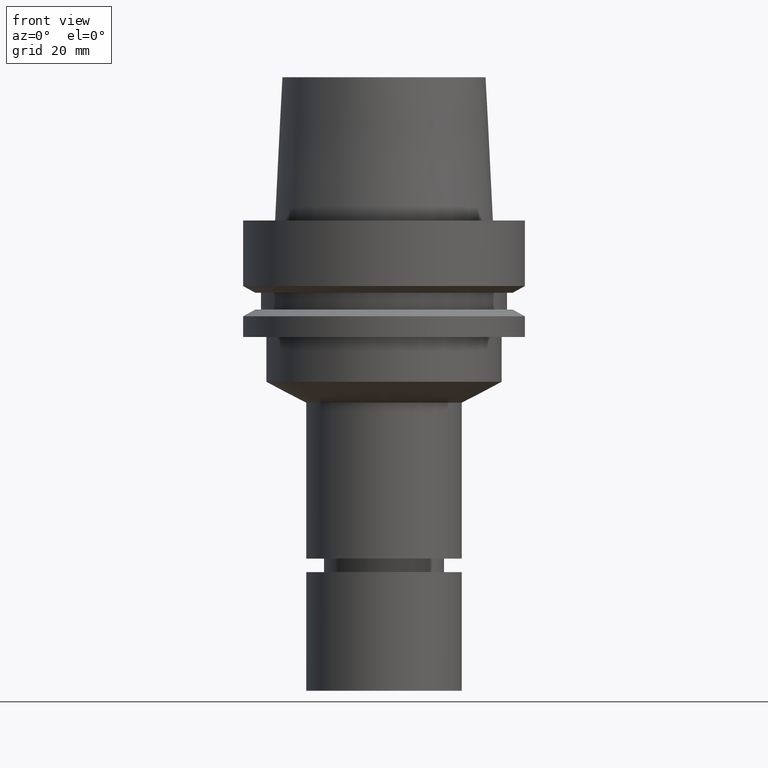
[diagram: clean part render]
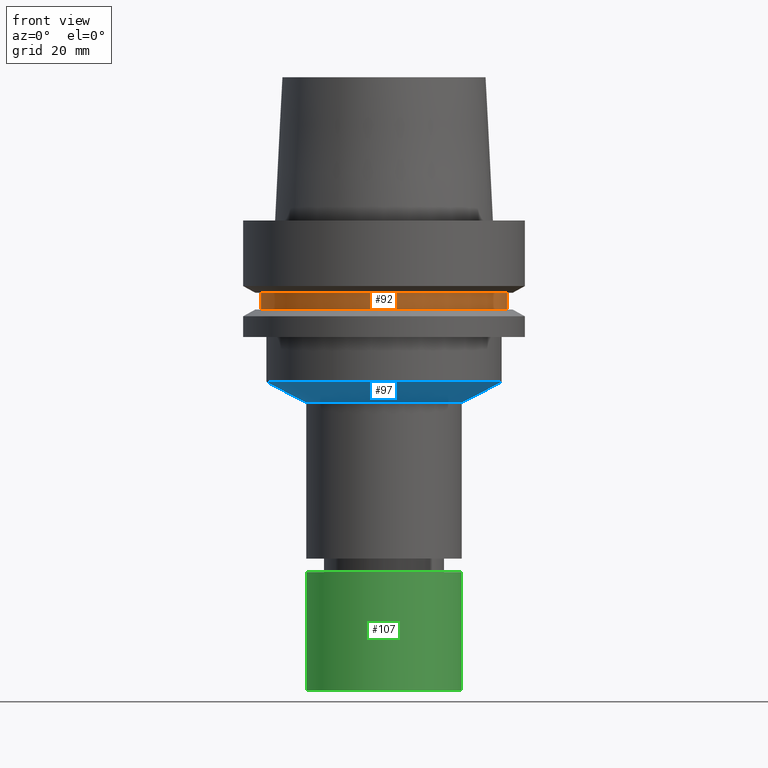
[diagram: same view with three faces highlighted in distinct colors, each labeled with its STEP entity id]
A machine part, front view with three faces highlighted in distinct colors.
Their STEP definitions:

[orange] entity #92 — the highlighted cylindrical surface (bore or boss wall) has radius 27.5 mm, axis along (-0, -0, 1).
#92=ADVANCED_FACE('Unnamed[1]',(#234,#235),#236,.T.);
#104=EDGE_CURVE('Unnamed[1]',#253,#253,#254,.T.);
#194=EDGE_CURVE('Unnamed[1]',#392,#392,#393,.T.);
#234=FACE_BOUND('',#429,.T.);
#235=FACE_BOUND('',#430,.T.);
#236=CYLINDRICAL_SURFACE('',#431,27.4999999999994);
#253=VERTEX_POINT('',#453);
#254=CIRCLE('',#454,27.5);
#392=VERTEX_POINT('',#627);
#393=CIRCLE('',#628,27.4999999999989);
#429=EDGE_LOOP('',(#650));
#430=EDGE_LOOP('',(#651));
#431=AXIS2_PLACEMENT_3D('',#652,#653,#654);
#453=CARTESIAN_POINT('',(9.87371481812537E-016,27.5,-16.1249999999997));
#454=AXIS2_PLACEMENT_3D('',#672,#673,#674);
#627=CARTESIAN_POINT('',(1.21699275665276E-015,27.4999999999989,-19.8750000000013));
#628=AXIS2_PLACEMENT_3D('',#826,#827,#828);
#650=ORIENTED_EDGE('',*,*,#104,.F.);
#651=ORIENTED_EDGE('',*,*,#194,.T.);
#652=CARTESIAN_POINT('',(1.10218211923265E-015,2.2043642384653E-015,-18.0000000000005));
#653=DIRECTION('',(-6.12323399573677E-017,-1.22464679914735E-016,1.0));
#654=DIRECTION('',(-1.23259516440783E-032,1.0,1.22464679914735E-016));
#672=CARTESIAN_POINT('',(9.87371481812538E-016,1.97474296362508E-015,-16.1249999999997));
#673=DIRECTION('',(-6.12323399573677E-017,-1.22464679914735E-016,1.0));
#674=DIRECTION('',(-1.23259516440783E-032,1.0,1.22464679914735E-016));
#826=CARTESIAN_POINT('',(1.21699275665276E-015,2.43398551330552E-015,-19.8750000000013));
#827=DIRECTION('',(-6.12323399573677E-017,-1.22464679914735E-016,1.0));
#828=DIRECTION('',(-1.23259516440783E-032,1.0,1.22464679914735E-016));

[blue] entity #97 — the highlighted conical surface has half-angle 62.097 deg.
#97=ADVANCED_FACE('Unnamed[1]',(#242,#243),#244,.T.);
#113=EDGE_CURVE('Unnamed[1]',#267,#267,#268,.T.);
#160=EDGE_CURVE('Unnamed[1]',#339,#339,#340,.T.);
#242=FACE_BOUND('',#439,.T.);
#243=FACE_BOUND('',#440,.T.);
#244=CONICAL_SURFACE('',#441,21.8999999999999,1.08379854829247);
#267=VERTEX_POINT('',#471);
#268=CIRCLE('',#472,26.3);
#339=VERTEX_POINT('',#560);
#340=CIRCLE('',#561,17.4999999999999);
#439=EDGE_LOOP('',(#659));
#440=EDGE_LOOP('',(#660));
#441=AXIS2_PLACEMENT_3D('',#661,#662,#663);
#471=CARTESIAN_POINT('',(2.20436423846525E-015,26.3,-36.0000000000003));
#472=AXIS2_PLACEMENT_3D('',#687,#688,#689);
#560=CARTESIAN_POINT('',(2.48970289259618E-015,17.4999999999999,-40.6599338573311));
#561=AXIS2_PLACEMENT_3D('',#767,#768,#769);
#659=ORIENTED_EDGE('',*,*,#113,.F.);
#660=ORIENTED_EDGE('',*,*,#160,.T.);
#661=CARTESIAN_POINT('',(2.34703356553072E-015,4.69406713106143E-015,-38.3299669286657));
#662=DIRECTION('',(-6.12323399573676E-017,-1.22464679914735E-016,1.0));
#663=DIRECTION('',(-1.23259516440783E-032,1.0,1.22464679914735E-016));
#687=CARTESIAN_POINT('',(2.20436423846525E-015,4.40872847693051E-015,-36.0000000000003));
#688=DIRECTION('',(-6.12323399573677E-017,-1.22464679914735E-016,1.0));
#689=DIRECTION('',(-1.23259516440783E-032,1.0,1.22464679914735E-016));
#767=CARTESIAN_POINT('',(2.48970289259618E-015,4.97940578519236E-015,-40.6599338573311));
#768=DIRECTION('',(-6.12323399573676E-017,-1.22464679914735E-016,1.0));
#769=DIRECTION('',(-1.23259516440783E-032,1.0,1.22464679914735E-016));

[green] entity #107 — the highlighted cylindrical surface (bore or boss wall) has radius 17.5 mm, axis along (0, 0, -1).
#107=ADVANCED_FACE('Unnamed[1]',(#257,#258),#259,.T.);
#109=EDGE_CURVE('Unnamed[1]',#261,#261,#262,.T.);
#153=EDGE_CURVE('Unnamed[1]',#329,#329,#330,.T.);
#257=FACE_BOUND('',#458,.T.);
#258=FACE_BOUND('',#459,.T.);
#259=CYLINDRICAL_SURFACE('',#460,17.5);
#261=VERTEX_POINT('',#463);
#262=CIRCLE('',#464,17.5);
#329=VERTEX_POINT('',#547);
#330=CIRCLE('',#548,17.5);
#458=EDGE_LOOP('',(#676));
#459=EDGE_LOOP('',(#677));
#460=AXIS2_PLACEMENT_3D('',#678,#679,#680);
#463=CARTESIAN_POINT('',(4.80673962098472E-015,17.5,-78.5000152587891));
#464=AXIS2_PLACEMENT_3D('',#681,#682,#683);
#547=CARTESIAN_POINT('',(6.4293956955236E-015,17.5,-105.0));
#548=AXIS2_PLACEMENT_3D('',#756,#757,#758);
#676=ORIENTED_EDGE('',*,*,#153,.F.);
#677=ORIENTED_EDGE('',*,*,#109,.T.);
#678=CARTESIAN_POINT('',(5.61806765825416E-015,1.12361353165083E-014,-91.7500076293945));
#679=DIRECTION('',(6.12323399573677E-017,1.22464679914735E-016,-1.0));
#680=DIRECTION('',(-1.23259516440783E-032,1.0,1.22464679914735E-016));
#681=CARTESIAN_POINT('',(4.80673962098472E-015,9.61347924196944E-015,-78.5000152587891));
#682=DIRECTION('',(6.12323399573677E-017,1.22464679914735E-016,-1.0));
#683=DIRECTION('',(-1.23259516440783E-032,1.0,1.22464679914735E-016));
#756=CARTESIAN_POINT('',(6.4293956955236E-015,1.28587913910472E-014,-105.0));
#757=DIRECTION('',(6.12323399573677E-017,1.22464679914735E-016,-1.0));
#758=DIRECTION('',(-1.23259516440783E-032,1.0,1.22464679914735E-016));